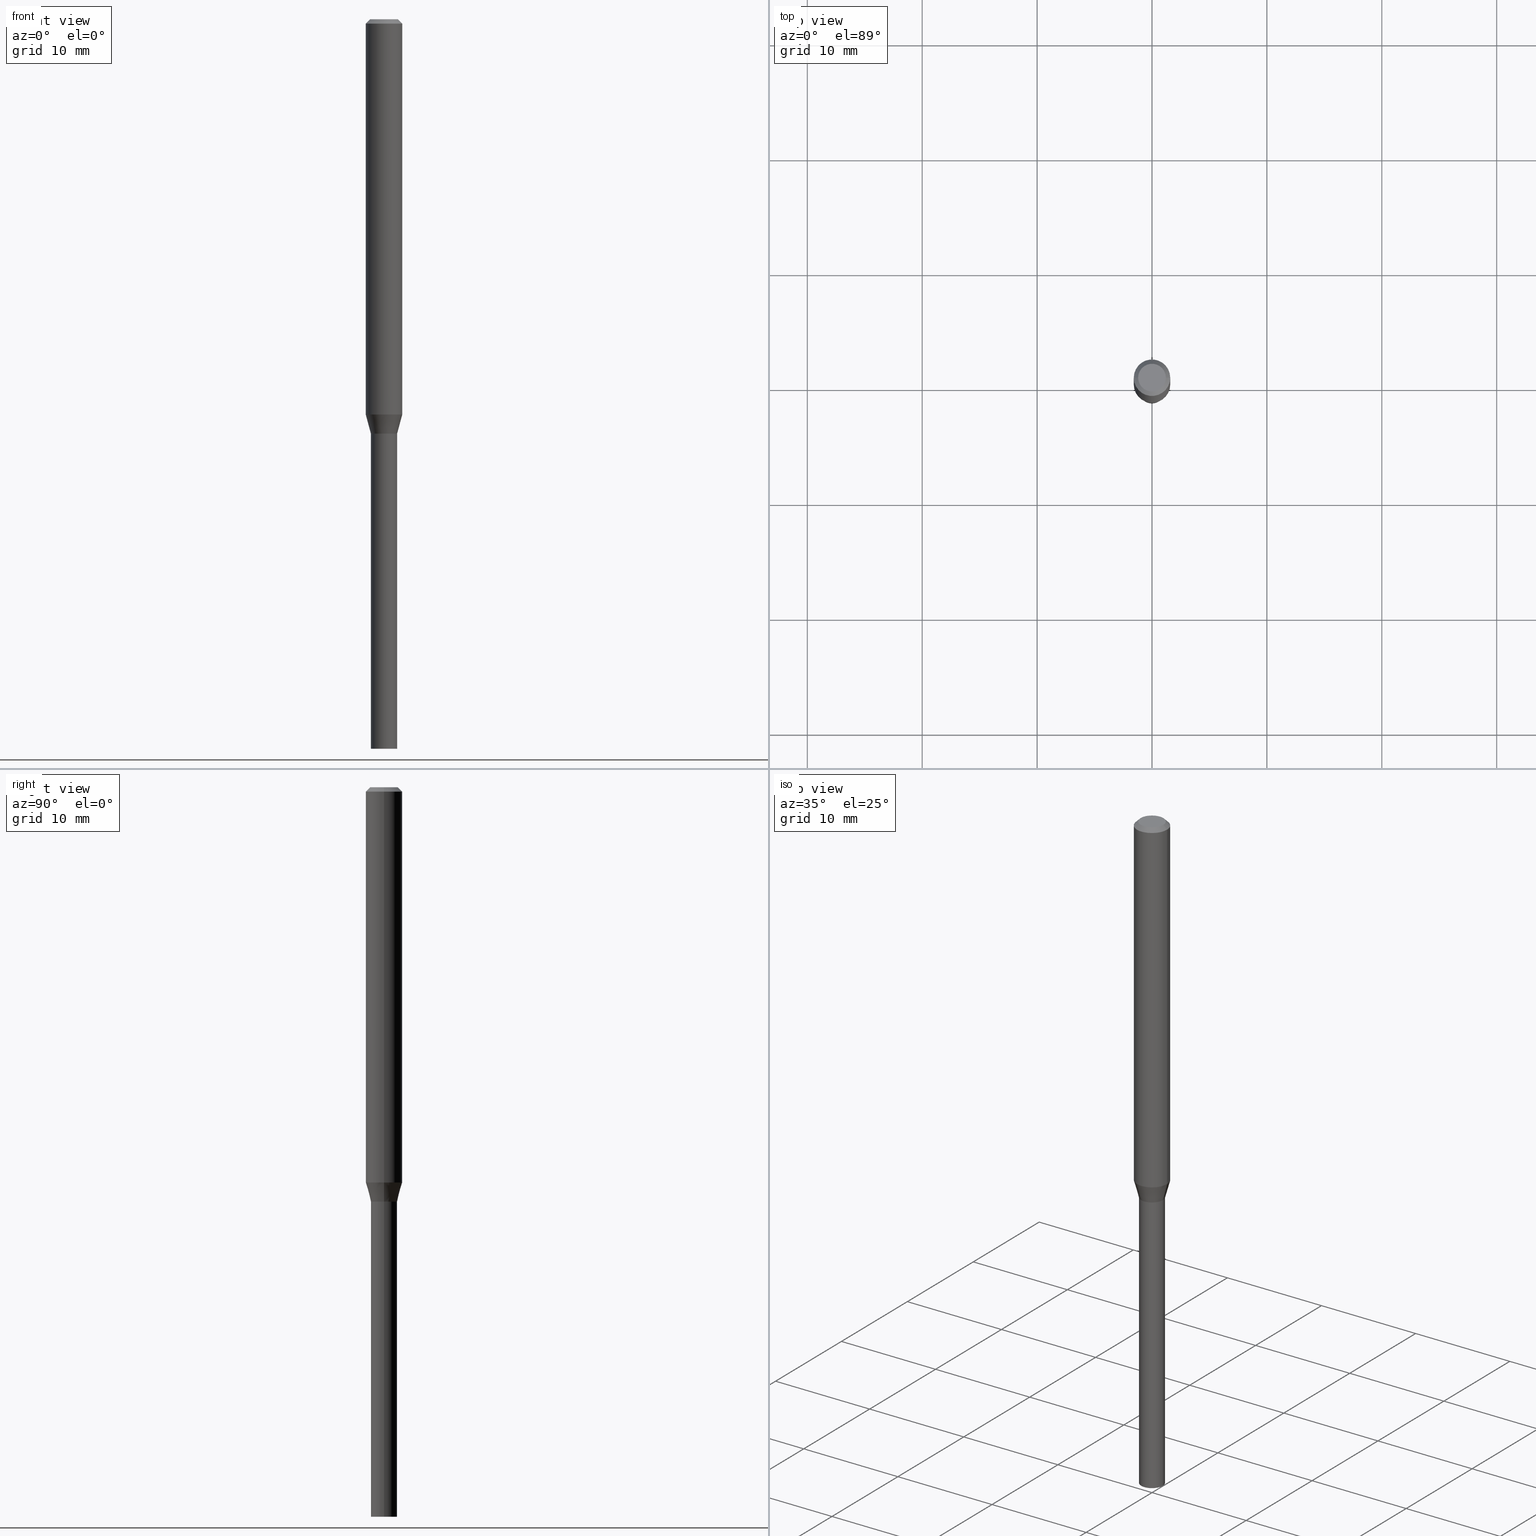
[diagram: canonical four-view strip — front | top / right | iso, engineering-drawing reading convention]
A machine part, canonical four-view strip (front | top / right | iso — engineering-drawing reading convention). The complete STEP part file that produces these views, byte-faithful:
ISO-10303-21;
HEADER;
FILE_DESCRIPTION (( 'STEP AP203' ),
    '1' );
FILE_NAME ('01303.STEP',
    '2024-03-20T01:15:59',
    ( '' ),
    ( '' ),
    'SwSTEP 2.0',
    'SolidWorks 2023',
    '' );
FILE_SCHEMA (( 'CONFIG_CONTROL_DESIGN' ));
ENDSEC;

DATA;
#1 = CARTESIAN_POINT ( 'NONE',  ( -0.06250000000000000000, -1.947032775455282295E-15, -0.01499999999999999944 ) ) ;
#2 = CALENDAR_DATE ( 2024, 19, 3 ) ;
#3 = ORIENTED_EDGE ( 'NONE', *, *, #205, .F. ) ;
#4 = AXIS2_PLACEMENT_3D ( 'NONE', #91, #127, #51 ) ;
#5 = PLANE ( 'NONE',  #213 ) ;
#6 = DIRECTION ( 'NONE',  ( -2.445468806185136597E-29, 3.491481338843145583E-15, 1.000000000000000000 ) ) ;
#7 = ADVANCED_FACE ( 'NONE', ( #388 ), #114, .T. ) ;
#8 = FACE_OUTER_BOUND ( 'NONE', #218, .T. ) ;
#9 = CONICAL_SURFACE ( 'NONE', #128, 0.06250000000000000000, 0.7853981633974512766 ) ;
#10 = LOCAL_TIME ( 21, 15, 59.00000000000000000, #441 ) ;
#11 = LINE ( 'NONE', #110, #232 ) ;
#12 = DIRECTION ( 'NONE',  ( 1.000000000000000000, -6.982962677686267499E-15, 4.876176775795936353E-29 ) ) ;
#13 = CARTESIAN_POINT ( 'NONE',  ( 3.471342970379802534E-29, -4.956157760487845847E-15, -1.419500000000000206 ) ) ;
#14 = EDGE_CURVE ( 'NONE', #313, #293, #240, .T. ) ;
#15 = DIMENSIONAL_EXPONENTS ( 1.000000000000000000, 0.000000000000000000, 0.000000000000000000, 0.000000000000000000, 0.000000000000000000, 0.000000000000000000, 0.000000000000000000 ) ;
#16 = DIRECTION ( 'NONE',  ( 1.000000000000000000, -6.982962677686267499E-15, 4.884662768193073002E-29 ) ) ;
#17 = MANIFOLD_SOLID_BREP ( 'Body-Move/Copy2[2]', #79 ) ;
#18 = CARTESIAN_POINT ( 'NONE',  ( 3.668203209277705088E-31, -5.237222008264718399E-17, -0.01499999999999999944 ) ) ;
#19 = VERTEX_POINT ( 'NONE', #102 ) ;
#20 = PRODUCT_DEFINITION ( 'UNKNOWN', '', #106, #107 ) ;
#21 = DIRECTION ( 'NONE',  ( 0.2588190451025217387, 1.565188264969619207E-15, 0.9659258262890679791 ) ) ;
#22 = ORIENTED_EDGE ( 'NONE', *, *, #457, .F. ) ;
#23 = CIRCLE ( 'NONE', #454, 0.06250000000000000000 ) ;
#24 = AXIS2_PLACEMENT_3D ( 'NONE', #437, #152, #262 ) ;
#25 = DIRECTION ( 'NONE',  ( 1.000000000000000000, -6.982962677686266711E-15, 4.876176775795935793E-29 ) ) ;
#26 = EDGE_LOOP ( 'NONE', ( #319, #181 ) ) ;
#27 = APPLICATION_PROTOCOL_DEFINITION ( 'international standard', 'config_control_design', 1994, #84 ) ;
#28 = VERTEX_POINT ( 'NONE', #1 ) ;
#29 = APPLICATION_PROTOCOL_DEFINITION ( 'international standard', 'config_control_design', 1994, #248 ) ;
#30 = DIRECTION ( 'NONE',  ( -2.445468806185136597E-29, 3.491481338843145583E-15, 1.000000000000000000 ) ) ;
#31 = EDGE_CURVE ( 'NONE', #285, #304, #184, .T. ) ;
#32 = ORIENTED_EDGE ( 'NONE', *, *, #330, .T. ) ;
#33 = ORIENTED_EDGE ( 'NONE', *, *, #244, .T. ) ;
#34 = EDGE_CURVE ( 'NONE', #144, #288, #359, .T. ) ;
#35 = COORDINATED_UNIVERSAL_TIME_OFFSET ( 5, 0, .BEHIND. ) ;
#36 = EDGE_LOOP ( 'NONE', ( #432, #448, #242, #451 ) ) ;
#37 = DIRECTION ( 'NONE',  ( 1.000000000000000000, -6.982962677686276966E-15, 0.000000000000000000 ) ) ;
#38 = APPROVAL_ROLE ( '' ) ;
#39 = LINE ( 'NONE', #224, #384 ) ;
#40 = EDGE_CURVE ( 'NONE', #144, #179, #23, .T. ) ;
#41 = FACE_OUTER_BOUND ( 'NONE', #424, .T. ) ;
#42 = DATE_AND_TIME ( #366, #10 ) ;
#43 = DIRECTION ( 'NONE',  ( -2.445468806185136597E-29, 3.491481338843145583E-15, 1.000000000000000000 ) ) ;
#44 = LOCAL_TIME ( 21, 15, 59.00000000000000000, #243 ) ;
#45 = PERSON_AND_ORGANIZATION_ROLE ( 'classification_officer' ) ;
#46 = DIRECTION ( 'NONE',  ( -2.445468806185136597E-29, 3.491481338843145583E-15, 1.000000000000000000 ) ) ;
#47 = FACE_OUTER_BOUND ( 'NONE', #428, .T. ) ;
#48 = DIRECTION ( 'NONE',  ( -1.000000000000000000, 6.982962677686266711E-15, 0.000000000000000000 ) ) ;
#49 = VERTEX_POINT ( 'NONE', #398 ) ;
#50 = CLOSED_SHELL ( 'NONE', ( #120, #172, #334, #413 ) ) ;
#51 = DIRECTION ( 'NONE',  ( -1.000000000000000000, 6.982962677686265922E-15, -4.876176775795935793E-29 ) ) ;
#52 = EDGE_CURVE ( 'NONE', #49, #385, #96, .T. ) ;
#53 = CARTESIAN_POINT ( 'NONE',  ( -0.04499999999999992895, 3.197442310920445788E-16, -2.213520790614704057E-30 ) ) ;
#54 = CARTESIAN_POINT ( 'NONE',  ( -0.04499999999999966527, -4.461970905371602436E-15, -1.420000000000000151 ) ) ;
#55 = AXIS2_PLACEMENT_3D ( 'NONE', #252, #396, #68 ) ;
#56 = CIRCLE ( 'NONE', #104, 0.04499999999999999833 ) ;
#57 =( CONVERSION_BASED_UNIT ( 'INCH', #64 ) LENGTH_UNIT ( ) NAMED_UNIT ( #15 ) );
#58 = ORIENTED_EDGE ( 'NONE', *, *, #391, .T. ) ;
#59 = CALENDAR_DATE ( 2024, 19, 3 ) ;
#60 = DIRECTION ( 'NONE',  ( -2.445468806185136597E-29, 3.491481338843145583E-15, 1.000000000000000000 ) ) ;
#61 = UNCERTAINTY_MEASURE_WITH_UNIT (LENGTH_MEASURE( 1.000000000000000082E-05 ), #57, 'distance_accuracy_value', 'NONE');
#62 = CARTESIAN_POINT ( 'NONE',  ( 3.472565704782894214E-29, -4.957903501157267351E-15, -1.420000000000000151 ) ) ;
#63 = ORIENTED_EDGE ( 'NONE', *, *, #347, .T. ) ;
#64 = LENGTH_MEASURE_WITH_UNIT ( LENGTH_MEASURE( 0.02539999999999999897 ), #145 );
#65 = CIRCLE ( 'NONE', #394, 0.06250000000000000000 ) ;
#66 = DIRECTION ( 'NONE',  ( 1.000000000000000000, -6.982962677686276966E-15, 0.000000000000000000 ) ) ;
#67 = EDGE_CURVE ( 'NONE', #179, #28, #209, .T. ) ;
#68 = DIRECTION ( 'NONE',  ( 1.000000000000000000, -6.982962677686257244E-15, 0.000000000000000000 ) ) ;
#69 = ORIENTED_EDGE ( 'NONE', *, *, #112, .T. ) ;
#70 = DIRECTION ( 'NONE',  ( 1.000000000000000000, -6.982962677686262766E-15, 0.000000000000000000 ) ) ;
#71 = VECTOR ( 'NONE', #190, 39.37007874015748143 ) ;
#72 = PERSON_AND_ORGANIZATION ( #360, #311 ) ;
#73 = DIRECTION ( 'NONE',  ( 1.000000000000000000, -6.982962677686266711E-15, 4.876176775795935793E-29 ) ) ;
#74 = CC_DESIGN_PERSON_AND_ORGANIZATION_ASSIGNMENT ( #346, #175, ( #132 ) ) ;
#75 = PERSON_AND_ORGANIZATION_ROLE ( 'creator' ) ;
#76 = CARTESIAN_POINT ( 'NONE',  ( 3.472565704782893654E-29, -4.957903501157266562E-15, -1.419999999999999929 ) ) ;
#77 = SHAPE_DEFINITION_REPRESENTATION ( #380, #111 ) ;
#78 = DIRECTION ( 'NONE',  ( -2.445468806185136877E-29, 3.491481338843145188E-15, 1.000000000000000000 ) ) ;
#79 = CLOSED_SHELL ( 'NONE', ( #191, #7, #284, #165, #198, #253, #125, #290, #301, #365, #422, #307 ) ) ;
#80 = CONICAL_SURFACE ( 'NONE', #303, 0.04499999999999966527, 0.2617993877991504625 ) ;
#81 = CARTESIAN_POINT ( 'NONE',  ( -0.04500000000000019262, -4.636413529395799690E-15, -1.419500000000000206 ) ) ;
#82 = LINE ( 'NONE', #343, #250 ) ;
#83 = ORIENTED_EDGE ( 'NONE', *, *, #244, .F. ) ;
#84 = APPLICATION_CONTEXT ( 'configuration controlled 3d designs of mechanical parts and assemblies' ) ;
#85 = CARTESIAN_POINT ( 'NONE',  ( 3.668203209277705088E-31, -5.237222008264718399E-17, -0.01499999999999999944 ) ) ;
#86 = EDGE_CURVE ( 'NONE', #293, #179, #39, .T. ) ;
#87 = ORIENTED_EDGE ( 'NONE', *, *, #223, .T. ) ;
#88 = AXIS2_PLACEMENT_3D ( 'NONE', #411, #337, #16 ) ;
#89 = DIRECTION ( 'NONE',  ( 2.445468806185136597E-29, -3.491481338843145583E-15, -1.000000000000000000 ) ) ;
#90 = VERTEX_POINT ( 'NONE', #194 ) ;
#91 = CARTESIAN_POINT ( 'NONE',  ( 3.316907271900976096E-16, 0.04749999999999999362, -2.081032274698379328E-16 ) ) ;
#92 = ORIENTED_EDGE ( 'NONE', *, *, #187, .F. ) ;
#93 = DIRECTION ( 'NONE',  ( -2.445468806185136597E-29, 3.491481338843145583E-15, 1.000000000000000000 ) ) ;
#94 = CIRCLE ( 'NONE', #362, 0.04499999999999999833 ) ;
#95 = EDGE_CURVE ( 'NONE', #313, #415, #408, .T. ) ;
#96 = CIRCLE ( 'NONE', #122, 0.04499999999999999833 ) ;
#97 = CIRCLE ( 'NONE', #241, 0.06250000000000000000 ) ;
#98 = ORIENTED_EDGE ( 'NONE', *, *, #95, .F. ) ;
#99 = APPROVAL_STATUS ( 'not_yet_approved' ) ;
#100 = ORIENTED_EDGE ( 'NONE', *, *, #355, .F. ) ;
#101 = PERSON_AND_ORGANIZATION ( #360, #311 ) ;
#102 = CARTESIAN_POINT ( 'NONE',  ( 0.04499999999999999833, -5.272136821653149037E-15, -1.420000000000000151 ) ) ;
#103 = EDGE_CURVE ( 'NONE', #385, #49, #94, .T. ) ;
#104 = AXIS2_PLACEMENT_3D ( 'NONE', #62, #143, #392 ) ;
#105 = DIRECTION ( 'NONE',  ( -2.445468806185136597E-29, 3.491481338843145583E-15, 1.000000000000000000 ) ) ;
#106 = PRODUCT_DEFINITION_FORMATION_WITH_SPECIFIED_SOURCE ( 'ANY', '', #132, .NOT_KNOWN. ) ;
#107 = DESIGN_CONTEXT ( 'detailed design', #84, 'design' ) ;
#108 = DATE_AND_TIME ( #401, #371 ) ;
#109 = EDGE_LOOP ( 'NONE', ( #231, #430, #146, #160 ) ) ;
#110 = CARTESIAN_POINT ( 'NONE',  ( 0.04449999999999999789, -5.268645340314304452E-15, -1.419999999999999929 ) ) ;
#111 = ADVANCED_BREP_SHAPE_REPRESENTATION ( '01303', ( #328, #17, #400 ), #162 ) ;
#112 = EDGE_CURVE ( 'NONE', #169, #375, #219, .T. ) ;
#113 = APPROVAL_STATUS ( 'not_yet_approved' ) ;
#114 = CONICAL_SURFACE ( 'NONE', #212, 0.04449999999999999789, 0.7853981633980202659 ) ;
#115 = DIRECTION ( 'NONE',  ( -0.2588190451025217387, 5.211531920934551042E-15, 0.9659258262890679791 ) ) ;
#116 = CC_DESIGN_APPROVAL ( #464, ( #20 ) ) ;
#117 = COORDINATED_UNIVERSAL_TIME_OFFSET ( 5, 0, .BEHIND. ) ;
#118 = CARTESIAN_POINT ( 'NONE',  ( -0.06250000000000000000, 3.840629472727444916E-16, -0.01499999999999999944 ) ) ;
#119 = FACE_OUTER_BOUND ( 'NONE', #348, .T. ) ;
#120 = ADVANCED_FACE ( 'NONE', ( #222 ), #188, .T. ) ;
#121 = CARTESIAN_POINT ( 'NONE',  ( 3.472565704782894214E-29, -4.957903501157267351E-15, -1.420000000000000151 ) ) ;
#122 = AXIS2_PLACEMENT_3D ( 'NONE', #315, #461, #137 ) ;
#123 = CIRCLE ( 'NONE', #417, 0.04499999999999966527 ) ;
#124 = CYLINDRICAL_SURFACE ( 'NONE', #310, 0.04499999999999999833 ) ;
#125 = ADVANCED_FACE ( 'NONE', ( #8 ), #149, .T. ) ;
#126 = FACE_OUTER_BOUND ( 'NONE', #197, .T. ) ;
#127 = DIRECTION ( 'NONE',  ( 2.438088387897960049E-29, -3.491481338843145188E-15, -1.000000000000000000 ) ) ;
#128 = AXIS2_PLACEMENT_3D ( 'NONE', #18, #89, #48 ) ;
#129 = CC_DESIGN_APPROVAL ( #156, ( #106 ) ) ;
#130 = CARTESIAN_POINT ( 'NONE',  ( 0.04449999999999999789, -5.268645340314304452E-15, -1.419999999999999929 ) ) ;
#131 = ORIENTED_EDGE ( 'NONE', *, *, #274, .F. ) ;
#132 = PRODUCT ( '01303', '01303', '', ( #349 ) ) ;
#133 = DIRECTION ( 'NONE',  ( -2.445468806185136597E-29, 3.491481338843145583E-15, 1.000000000000000000 ) ) ;
#134 = ORIENTED_EDGE ( 'NONE', *, *, #320, .F. ) ;
#135 = EDGE_CURVE ( 'NONE', #288, #28, #65, .T. ) ;
#136 = PERSON_AND_ORGANIZATION_ROLE ( 'creator' ) ;
#137 = DIRECTION ( 'NONE',  ( 1.000000000000000000, -6.982962677686246989E-15, 0.000000000000000000 ) ) ;
#138 = VECTOR ( 'NONE', #168, 39.37007874015748143 ) ;
#139 = CC_DESIGN_APPROVAL ( #202, ( #338 ) ) ;
#140 = DIRECTION ( 'NONE',  ( 1.000000000000000000, 0.000000000000000000, 0.000000000000000000 ) ) ;
#141 = CARTESIAN_POINT ( 'NONE',  ( 3.472565704782893654E-29, -4.957903501157266562E-15, -1.419999999999999929 ) ) ;
#142 = EDGE_CURVE ( 'NONE', #304, #415, #11, .T. ) ;
#143 = DIRECTION ( 'NONE',  ( -2.445468806185136597E-29, 3.491481338843145583E-15, 1.000000000000000000 ) ) ;
#144 = VERTEX_POINT ( 'NONE', #296 ) ;
#145 =( LENGTH_UNIT ( ) NAMED_UNIT ( * ) SI_UNIT ( $, .METRE. ) );
#146 = ORIENTED_EDGE ( 'NONE', *, *, #142, .T. ) ;
#147 = DATE_AND_TIME ( #2, #259 ) ;
#148 = DIRECTION ( 'NONE',  ( 1.000000000000000000, -6.982962677686262766E-15, 0.000000000000000000 ) ) ;
#149 = CYLINDRICAL_SURFACE ( 'NONE', #24, 0.06250000000000000000 ) ;
#150 = EDGE_CURVE ( 'NONE', #375, #28, #403, .T. ) ;
#151 = DATE_AND_TIME ( #438, #170 ) ;
#152 = DIRECTION ( 'NONE',  ( -2.445468806185136597E-29, 3.491481338843145583E-15, 1.000000000000000000 ) ) ;
#153 = PERSON_AND_ORGANIZATION ( #360, #311 ) ;
#154 = CARTESIAN_POINT ( 'NONE',  ( 0.000000000000000000, 0.000000000000000000, 0.000000000000000000 ) ) ;
#155 = AXIS2_PLACEMENT_3D ( 'NONE', #374, #268, #373 ) ;
#156 = APPROVAL ( #434, 'UNSPECIFIED' ) ;
#157 = FACE_OUTER_BOUND ( 'NONE', #26, .T. ) ;
#158 = DIRECTION ( 'NONE',  ( -2.438088387897960049E-29, 3.491481338843145188E-15, 1.000000000000000000 ) ) ;
#159 = DIRECTION ( 'NONE',  ( 1.000000000000000000, -6.982962677686259611E-15, 0.000000000000000000 ) ) ;
#160 = ORIENTED_EDGE ( 'NONE', *, *, #442, .F. ) ;
#161 = CONICAL_SURFACE ( 'NONE', #332, 0.06250000000000000000, 0.7853981633974512766 ) ;
#162 =( GEOMETRIC_REPRESENTATION_CONTEXT ( 3 ) GLOBAL_UNCERTAINTY_ASSIGNED_CONTEXT ( ( #61 ) ) GLOBAL_UNIT_ASSIGNED_CONTEXT ( ( #57, #465, #246 ) ) REPRESENTATION_CONTEXT ( 'NONE', 'WORKASPACE' ) );
#163 = CARTESIAN_POINT ( 'NONE',  ( 0.04499999999999966527, -5.272136821653147459E-15, -1.420000000000000151 ) ) ;
#164 = ORIENTED_EDGE ( 'NONE', *, *, #34, .F. ) ;
#165 = ADVANCED_FACE ( 'NONE', ( #41 ), #443, .T. ) ;
#166 = DIRECTION ( 'NONE',  ( -2.445468806185136877E-29, 3.491481338843145188E-15, 1.000000000000000000 ) ) ;
#167 = EDGE_LOOP ( 'NONE', ( #58, #69 ) ) ;
#168 = DIRECTION ( 'NONE',  ( -2.445468806185136877E-29, 3.491481338843145188E-15, 1.000000000000000000 ) ) ;
#169 = VERTEX_POINT ( 'NONE', #294 ) ;
#170 = LOCAL_TIME ( 21, 15, 59.00000000000000000, #117 ) ;
#171 = DIRECTION ( 'NONE',  ( 1.000000000000000000, -6.982962677686276966E-15, 0.000000000000000000 ) ) ;
#172 = ADVANCED_FACE ( 'NONE', ( #157 ), #5, .F. ) ;
#173 = ORIENTED_EDGE ( 'NONE', *, *, #205, .T. ) ;
#174 = EDGE_LOOP ( 'NONE', ( #322, #344 ) ) ;
#175 = PERSON_AND_ORGANIZATION_ROLE ( 'design_owner' ) ;
#176 = CARTESIAN_POINT ( 'NONE',  ( -0.06250000000000000000, 4.440892098500626162E-16, -3.074334431409316114E-30 ) ) ;
#177 = CIRCLE ( 'NONE', #88, 0.04749999999999999362 ) ;
#178 = CARTESIAN_POINT ( 'NONE',  ( 0.000000000000000000, 0.000000000000000000, 0.000000000000000000 ) ) ;
#179 = VERTEX_POINT ( 'NONE', #405 ) ;
#180 = DIRECTION ( 'NONE',  ( -1.000000000000000000, 6.982962677686265922E-15, -4.876176775795935793E-29 ) ) ;
#181 = ORIENTED_EDGE ( 'NONE', *, *, #103, .F. ) ;
#182 = PLANE ( 'NONE',  #276 ) ;
#183 = CARTESIAN_POINT ( 'NONE',  ( 0.06250000000000000000, -4.364351673553916694E-16, 3.047610484872459871E-30 ) ) ;
#184 = CIRCLE ( 'NONE', #55, 0.04449999999999999789 ) ;
#185 = CIRCLE ( 'NONE', #325, 0.04500000000000019262 ) ;
#186 = CARTESIAN_POINT ( 'NONE',  ( 3.312849962705256373E-29, -4.729871750528042350E-15, -1.354689110867543844 ) ) ;
#187 = EDGE_CURVE ( 'NONE', #304, #285, #370, .T. ) ;
#188 = CYLINDRICAL_SURFACE ( 'NONE', #258, 0.04499999999999999833 ) ;
#189 = SECURITY_CLASSIFICATION_LEVEL ( 'unclassified' ) ;
#190 = DIRECTION ( 'NONE',  ( -0.7071067811865496822, 2.468850131082278754E-15, -0.7071067811865454633 ) ) ;
#191 = ADVANCED_FACE ( 'NONE', ( #119 ), #256, .F. ) ;
#192 = CARTESIAN_POINT ( 'NONE',  ( 6.113672015462842613E-29, -8.728703347107864943E-15, -2.500000000000000000 ) ) ;
#193 = AXIS2_PLACEMENT_3D ( 'NONE', #372, #46, #12 ) ;
#194 = CARTESIAN_POINT ( 'NONE',  ( -0.04499999999999999833, -6.523559193040520779E-15, -1.420000000000000151 ) ) ;
#195 = DIRECTION ( 'NONE',  ( 2.445468806185136597E-29, -3.491481338843145583E-15, -1.000000000000000000 ) ) ;
#196 = LINE ( 'NONE', #53, #138 ) ;
#197 = EDGE_LOOP ( 'NONE', ( #275, #32, #217, #247 ) ) ;
#198 = ADVANCED_FACE ( 'NONE', ( #300 ), #318, .T. ) ;
#199 = AXIS2_PLACEMENT_3D ( 'NONE', #154, #298, #73 ) ;
#200 = FACE_OUTER_BOUND ( 'NONE', #204, .T. ) ;
#201 = VERTEX_POINT ( 'NONE', #81 ) ;
#202 = APPROVAL ( #113, 'UNSPECIFIED' ) ;
#203 = DIRECTION ( 'NONE',  ( 1.000000000000000000, -6.982962677686267499E-15, 4.876176775795936353E-29 ) ) ;
#204 = EDGE_LOOP ( 'NONE', ( #350, #393, #390, #237 ) ) ;
#205 = EDGE_CURVE ( 'NONE', #179, #144, #409, .T. ) ;
#206 = CYLINDRICAL_SURFACE ( 'NONE', #345, 0.04499999999999992895 ) ;
#207 = AXIS2_PLACEMENT_3D ( 'NONE', #13, #133, #159 ) ;
#208 = DATE_AND_TIME ( #59, #44 ) ;
#209 = LINE ( 'NONE', #176, #249 ) ;
#210 = CARTESIAN_POINT ( 'NONE',  ( 3.471342970379802534E-29, -4.956157760487845847E-15, -1.419500000000000206 ) ) ;
#211 = ORIENTED_EDGE ( 'NONE', *, *, #34, .T. ) ;
#212 = AXIS2_PLACEMENT_3D ( 'NONE', #141, #105, #289 ) ;
#213 = AXIS2_PLACEMENT_3D ( 'NONE', #445, #158, #368 ) ;
#214 = APPROVAL_PERSON_ORGANIZATION ( #153, #156, #38 ) ;
#215 = ORIENTED_EDGE ( 'NONE', *, *, #436, .F. ) ;
#216 = DIRECTION ( 'NONE',  ( 1.000000000000000000, -6.982962677686257244E-15, 0.000000000000000000 ) ) ;
#217 = ORIENTED_EDGE ( 'NONE', *, *, #135, .T. ) ;
#218 = EDGE_LOOP ( 'NONE', ( #234, #173, #211, #22 ) ) ;
#219 = CIRCLE ( 'NONE', #283, 0.04749999999999999362 ) ;
#220 = LINE ( 'NONE', #364, #446 ) ;
#221 = DATE_TIME_ROLE ( 'classification_date' ) ;
#222 = FACE_OUTER_BOUND ( 'NONE', #245, .T. ) ;
#223 = EDGE_CURVE ( 'NONE', #385, #90, #220, .T. ) ;
#224 = CARTESIAN_POINT ( 'NONE',  ( -0.04499999999999966527, -4.638159270065224349E-15, -1.420000000000000151 ) ) ;
#225 = CARTESIAN_POINT ( 'NONE',  ( 0.04499999999999992895, -3.142333204958815385E-16, 2.194279549108167814E-30 ) ) ;
#226 = VECTOR ( 'NONE', #423, 39.37007874015748143 ) ;
#227 = CC_DESIGN_SECURITY_CLASSIFICATION ( #338, ( #106 ) ) ;
#228 = FACE_OUTER_BOUND ( 'NONE', #167, .T. ) ;
#229 = FACE_OUTER_BOUND ( 'NONE', #339, .T. ) ;
#230 = FACE_OUTER_BOUND ( 'NONE', #36, .T. ) ;
#231 = ORIENTED_EDGE ( 'NONE', *, *, #449, .F. ) ;
#232 = VECTOR ( 'NONE', #367, 39.37007874015748854 ) ;
#233 = DIRECTION ( 'NONE',  ( 1.000000000000000000, -6.982962677686269077E-15, 0.000000000000000000 ) ) ;
#234 = ORIENTED_EDGE ( 'NONE', *, *, #67, .F. ) ;
#235 = CC_DESIGN_DATE_AND_TIME_ASSIGNMENT ( #208, #255, ( #20 ) ) ;
#236 = CARTESIAN_POINT ( 'NONE',  ( 3.472565704782894214E-29, -4.957903501157267351E-15, -1.420000000000000151 ) ) ;
#237 = ORIENTED_EDGE ( 'NONE', *, *, #369, .T. ) ;
#238 = LINE ( 'NONE', #352, #386 ) ;
#239 = ORIENTED_EDGE ( 'NONE', *, *, #135, .F. ) ;
#240 = CIRCLE ( 'NONE', #265, 0.04499999999999966527 ) ;
#241 = AXIS2_PLACEMENT_3D ( 'NONE', #425, #316, #281 ) ;
#242 = ORIENTED_EDGE ( 'NONE', *, *, #150, .T. ) ;
#243 = COORDINATED_UNIVERSAL_TIME_OFFSET ( 5, 0, .BEHIND. ) ;
#244 = EDGE_CURVE ( 'NONE', #313, #144, #418, .T. ) ;
#245 = EDGE_LOOP ( 'NONE', ( #254, #87, #134, #131 ) ) ;
#246 =( NAMED_UNIT ( * ) SI_UNIT ( $, .STERADIAN. ) SOLID_ANGLE_UNIT ( ) );
#247 = ORIENTED_EDGE ( 'NONE', *, *, #150, .F. ) ;
#248 = APPLICATION_CONTEXT ( 'configuration controlled 3d designs of mechanical parts and assemblies' ) ;
#249 = VECTOR ( 'NONE', #444, 39.37007874015748143 ) ;
#250 = VECTOR ( 'NONE', #450, 39.37007874015748143 ) ;
#251 = FACE_OUTER_BOUND ( 'NONE', #174, .T. ) ;
#252 = CARTESIAN_POINT ( 'NONE',  ( 3.472565704782893654E-29, -4.957903501157266562E-15, -1.419999999999999929 ) ) ;
#253 = ADVANCED_FACE ( 'NONE', ( #47 ), #80, .T. ) ;
#254 = ORIENTED_EDGE ( 'NONE', *, *, #52, .T. ) ;
#255 = DATE_TIME_ROLE ( 'creation_date' ) ;
#256 = CYLINDRICAL_SURFACE ( 'NONE', #193, 0.04499999999999992895 ) ;
#257 = APPROVAL_ROLE ( '' ) ;
#258 = AXIS2_PLACEMENT_3D ( 'NONE', #410, #335, #326 ) ;
#259 = LOCAL_TIME ( 21, 15, 59.00000000000000000, #35 ) ;
#260 = DIRECTION ( 'NONE',  ( 1.000000000000000000, -6.982962677686266711E-15, 0.000000000000000000 ) ) ;
#261 = COORDINATED_UNIVERSAL_TIME_OFFSET ( 5, 0, .BEHIND. ) ;
#262 = DIRECTION ( 'NONE',  ( 1.000000000000000000, -6.982962677686266711E-15, 4.876176775795935793E-29 ) ) ;
#263 = APPROVAL_DATE_TIME ( #108, #156 ) ;
#264 = DIRECTION ( 'NONE',  ( 1.000000000000000000, -6.982962677686246989E-15, 0.000000000000000000 ) ) ;
#265 = AXIS2_PLACEMENT_3D ( 'NONE', #357, #30, #66 ) ;
#266 = DIRECTION ( 'NONE',  ( -2.445468806185136597E-29, 3.491481338843145583E-15, 1.000000000000000000 ) ) ;
#267 = AXIS2_PLACEMENT_3D ( 'NONE', #395, #93, #216 ) ;
#268 = DIRECTION ( 'NONE',  ( -2.438088387897960049E-29, 3.491481338843145188E-15, 1.000000000000000000 ) ) ;
#269 = ORIENTED_EDGE ( 'NONE', *, *, #449, .T. ) ;
#270 = CC_DESIGN_PERSON_AND_ORGANIZATION_ASSIGNMENT ( #72, #295, ( #106 ) ) ;
#271 = DIRECTION ( 'NONE',  ( -1.000000000000000000, 6.982962677686266711E-15, 0.000000000000000000 ) ) ;
#272 = ORIENTED_EDGE ( 'NONE', *, *, #86, .T. ) ;
#273 = DIRECTION ( 'NONE',  ( -2.445468806185136597E-29, 3.491481338843145583E-15, 1.000000000000000000 ) ) ;
#274 = EDGE_CURVE ( 'NONE', #49, #19, #82, .T. ) ;
#275 = ORIENTED_EDGE ( 'NONE', *, *, #112, .F. ) ;
#276 = AXIS2_PLACEMENT_3D ( 'NONE', #358, #429, #180 ) ;
#277 = CARTESIAN_POINT ( 'NONE',  ( 0.000000000000000000, 0.000000000000000000, 0.000000000000000000 ) ) ;
#278 = ORIENTED_EDGE ( 'NONE', *, *, #67, .T. ) ;
#279 = CARTESIAN_POINT ( 'NONE',  ( -0.04499999999999999833, -6.523559193040520779E-15, -2.500000000000000000 ) ) ;
#280 = ORIENTED_EDGE ( 'NONE', *, *, #369, .F. ) ;
#281 = DIRECTION ( 'NONE',  ( 1.000000000000000000, -6.982962677686266711E-15, 0.000000000000000000 ) ) ;
#282 = ORIENTED_EDGE ( 'NONE', *, *, #86, .F. ) ;
#283 = AXIS2_PLACEMENT_3D ( 'NONE', #361, #439, #333 ) ;
#284 = ADVANCED_FACE ( 'NONE', ( #126 ), #161, .T. ) ;
#285 = VERTEX_POINT ( 'NONE', #414 ) ;
#286 = CC_DESIGN_DATE_AND_TIME_ASSIGNMENT ( #151, #221, ( #338 ) ) ;
#287 = DIRECTION ( 'NONE',  ( 0.000000000000000000, 0.000000000000000000, 1.000000000000000000 ) ) ;
#288 = VERTEX_POINT ( 'NONE', #447 ) ;
#289 = DIRECTION ( 'NONE',  ( 1.000000000000000000, -6.982962677686257244E-15, 0.000000000000000000 ) ) ;
#290 = ADVANCED_FACE ( 'NONE', ( #230 ), #9, .T. ) ;
#291 = CIRCLE ( 'NONE', #455, 0.04499999999999999833 ) ;
#292 = APPROVAL_DATE_TIME ( #147, #464 ) ;
#293 = VERTEX_POINT ( 'NONE', #54 ) ;
#294 = CARTESIAN_POINT ( 'NONE',  ( 0.04749999999999999362, -4.035134999187580102E-16, -8.451572774957450897E-17 ) ) ;
#295 = PERSON_AND_ORGANIZATION_ROLE ( 'design_supplier' ) ;
#296 = CARTESIAN_POINT ( 'NONE',  ( 0.06250000000000000000, -5.166306917883434019E-15, -1.354689110867543844 ) ) ;
#297 = AXIS2_PLACEMENT_3D ( 'NONE', #121, #266, #37 ) ;
#298 = DIRECTION ( 'NONE',  ( -2.445468806185136597E-29, 3.491481338843145583E-15, 1.000000000000000000 ) ) ;
#299 = DIRECTION ( 'NONE',  ( 1.000000000000000000, -6.982962677686257244E-15, 0.000000000000000000 ) ) ;
#300 = FACE_OUTER_BOUND ( 'NONE', #419, .T. ) ;
#301 = ADVANCED_FACE ( 'NONE', ( #228 ), #377, .F. ) ;
#302 = CARTESIAN_POINT ( 'NONE',  ( -0.04749999999999999362, 3.578768372314209027E-16, -8.451572774957950098E-17 ) ) ;
#303 = AXIS2_PLACEMENT_3D ( 'NONE', #341, #420, #305 ) ;
#304 = VERTEX_POINT ( 'NONE', #130 ) ;
#305 = DIRECTION ( 'NONE',  ( 1.000000000000000000, -6.982962677686276966E-15, 0.000000000000000000 ) ) ;
#306 = EDGE_LOOP ( 'NONE', ( #92, #453 ) ) ;
#307 = ADVANCED_FACE ( 'NONE', ( #200 ), #206, .F. ) ;
#308 = CARTESIAN_POINT ( 'NONE',  ( 0.04499999999999966527, -5.272136821653147459E-15, -1.420000000000000151 ) ) ;
#309 = CARTESIAN_POINT ( 'NONE',  ( 3.472565704782894214E-29, -4.957903501157267351E-15, -1.420000000000000151 ) ) ;
#310 = AXIS2_PLACEMENT_3D ( 'NONE', #277, #382, #25 ) ;
#311 = ORGANIZATION ( 'UNSPECIFIED', 'UNSPECIFIED', '' ) ;
#312 = FACE_OUTER_BOUND ( 'NONE', #306, .T. ) ;
#313 = VERTEX_POINT ( 'NONE', #308 ) ;
#314 = APPROVAL_ROLE ( '' ) ;
#315 = CARTESIAN_POINT ( 'NONE',  ( 6.113672015462842613E-29, -8.728703347107864943E-15, -2.500000000000000000 ) ) ;
#316 = DIRECTION ( 'NONE',  ( -2.445468806185136597E-29, 3.491481338843145583E-15, 1.000000000000000000 ) ) ;
#317 = ORIENTED_EDGE ( 'NONE', *, *, #355, .T. ) ;
#318 = CONICAL_SURFACE ( 'NONE', #297, 0.04499999999999966527, 0.2617993877991504625 ) ;
#319 = ORIENTED_EDGE ( 'NONE', *, *, #52, .F. ) ;
#320 = EDGE_CURVE ( 'NONE', #19, #90, #291, .T. ) ;
#321 = DIRECTION ( 'NONE',  ( -2.445468806185136597E-29, 3.491481338843145583E-15, 1.000000000000000000 ) ) ;
#322 = ORIENTED_EDGE ( 'NONE', *, *, #320, .T. ) ;
#323 = FACE_OUTER_BOUND ( 'NONE', #109, .T. ) ;
#324 = CARTESIAN_POINT ( 'NONE',  ( 3.312849962705256373E-29, -4.729871750528042350E-15, -1.354689110867543844 ) ) ;
#325 = AXIS2_PLACEMENT_3D ( 'NONE', #210, #321, #431 ) ;
#326 = DIRECTION ( 'NONE',  ( 1.000000000000000000, -6.982962677686266711E-15, 4.876176775795935793E-29 ) ) ;
#327 = APPROVAL_DATE_TIME ( #42, #202 ) ;
#328 = MANIFOLD_SOLID_BREP ( 'Body-Move/Copy2[1]', #50 ) ;
#329 = CARTESIAN_POINT ( 'NONE',  ( 3.668203209277705088E-31, -5.237222008264718399E-17, -0.01499999999999999944 ) ) ;
#330 = EDGE_CURVE ( 'NONE', #169, #288, #336, .T. ) ;
#331 = DIRECTION ( 'NONE',  ( -2.445468806185136597E-29, 3.491481338843145583E-15, 1.000000000000000000 ) ) ;
#332 = AXIS2_PLACEMENT_3D ( 'NONE', #85, #195, #271 ) ;
#333 = DIRECTION ( 'NONE',  ( 1.000000000000000000, -6.982962677686267499E-15, 4.884662768193073002E-29 ) ) ;
#334 = ADVANCED_FACE ( 'NONE', ( #229 ), #124, .T. ) ;
#335 = DIRECTION ( 'NONE',  ( -2.445468806185136597E-29, 3.491481338843145583E-15, 1.000000000000000000 ) ) ;
#336 = LINE ( 'NONE', #379, #226 ) ;
#337 = DIRECTION ( 'NONE',  ( -2.445468806185136597E-29, 3.491481338843145583E-15, 1.000000000000000000 ) ) ;
#338 = SECURITY_CLASSIFICATION ( '', '', #189 ) ;
#339 = EDGE_LOOP ( 'NONE', ( #466, #412, #342, #215 ) ) ;
#340 = DIRECTION ( 'NONE',  ( -2.445468806185136597E-29, 3.491481338843145583E-15, 1.000000000000000000 ) ) ;
#341 = CARTESIAN_POINT ( 'NONE',  ( 3.472565704782894214E-29, -4.957903501157267351E-15, -1.420000000000000151 ) ) ;
#342 = ORIENTED_EDGE ( 'NONE', *, *, #274, .T. ) ;
#343 = CARTESIAN_POINT ( 'NONE',  ( 0.04499999999999999833, -3.142333204958819823E-16, 2.194279549108170967E-30 ) ) ;
#344 = ORIENTED_EDGE ( 'NONE', *, *, #436, .T. ) ;
#345 = AXIS2_PLACEMENT_3D ( 'NONE', #452, #340, #203 ) ;
#346 = PERSON_AND_ORGANIZATION ( #360, #311 ) ;
#347 = EDGE_CURVE ( 'NONE', #293, #201, #196, .T. ) ;
#348 = EDGE_LOOP ( 'NONE', ( #100, #63, #353, #98 ) ) ;
#349 = MECHANICAL_CONTEXT ( 'NONE', #248, 'mechanical' ) ;
#350 = ORIENTED_EDGE ( 'NONE', *, *, #347, .F. ) ;
#351 = PRODUCT_RELATED_PRODUCT_CATEGORY ( 'detail', '', ( #132 ) ) ;
#352 = CARTESIAN_POINT ( 'NONE',  ( -0.04449999999999999789, -4.641711983744021304E-15, -1.419999999999999929 ) ) ;
#353 = ORIENTED_EDGE ( 'NONE', *, *, #442, .T. ) ;
#354 = CONICAL_SURFACE ( 'NONE', #267, 0.04449999999999999789, 0.7853981633980202659 ) ;
#355 = EDGE_CURVE ( 'NONE', #293, #313, #123, .T. ) ;
#356 = APPROVAL_PERSON_ORGANIZATION ( #101, #464, #314 ) ;
#357 = CARTESIAN_POINT ( 'NONE',  ( 3.472565704782894214E-29, -4.957903501157267351E-15, -1.420000000000000151 ) ) ;
#358 = CARTESIAN_POINT ( 'NONE',  ( 3.142333204959166428E-16, 0.04499999999999503703, -1.420000000000000373 ) ) ;
#359 = LINE ( 'NONE', #183, #416 ) ;
#360 = PERSON ( 'UNSPECIFIED', 'UNSPECIFIED', 'UNSPECIFIED', ('UNSPECIFIED'), ('UNSPECIFIED'), ('UNSPECIFIED') ) ;
#361 = CARTESIAN_POINT ( 'NONE',  ( 2.066805758436263276E-45, -2.950850862763961857E-31, -8.451572774957708509E-17 ) ) ;
#362 = AXIS2_PLACEMENT_3D ( 'NONE', #192, #331, #264 ) ;
#363 = VECTOR ( 'NONE', #78, 39.37007874015748143 ) ;
#364 = CARTESIAN_POINT ( 'NONE',  ( -0.04499999999999999833, 3.197442310920450718E-16, -2.213520790614707560E-30 ) ) ;
#365 = ADVANCED_FACE ( 'NONE', ( #312 ), #459, .F. ) ;
#366 = CALENDAR_DATE ( 2024, 19, 3 ) ;
#367 = DIRECTION ( 'NONE',  ( 0.7071067811869518049, -2.468850131086492060E-15, 0.7071067811861430075 ) ) ;
#368 = DIRECTION ( 'NONE',  ( 1.000000000000000000, -6.982962677686265922E-15, 4.876176775795935793E-29 ) ) ;
#369 = EDGE_CURVE ( 'NONE', #415, #201, #427, .T. ) ;
#370 = CIRCLE ( 'NONE', #440, 0.04449999999999999789 ) ;
#371 = LOCAL_TIME ( 21, 15, 59.00000000000000000, #261 ) ;
#372 = CARTESIAN_POINT ( 'NONE',  ( 0.000000000000000000, 0.000000000000000000, 0.000000000000000000 ) ) ;
#373 = DIRECTION ( 'NONE',  ( 1.000000000000000000, -6.982962677686265922E-15, 4.876176775795935793E-29 ) ) ;
#374 = CARTESIAN_POINT ( 'NONE',  ( 3.472565704782894214E-29, -4.957903501157267351E-15, -1.420000000000000151 ) ) ;
#375 = VERTEX_POINT ( 'NONE', #302 ) ;
#376 = AXIS2_PLACEMENT_3D ( 'NONE', #186, #399, #70 ) ;
#377 = PLANE ( 'NONE',  #4 ) ;
#378 = ORIENTED_EDGE ( 'NONE', *, *, #14, .T. ) ;
#379 = CARTESIAN_POINT ( 'NONE',  ( 0.06250000000000000000, -4.811533449433679005E-16, -0.01499999999999999944 ) ) ;
#380 = PRODUCT_DEFINITION_SHAPE ( 'NONE', 'NONE',  #20 ) ;
#381 = ORIENTED_EDGE ( 'NONE', *, *, #40, .F. ) ;
#382 = DIRECTION ( 'NONE',  ( -2.445468806185136597E-29, 3.491481338843145583E-15, 1.000000000000000000 ) ) ;
#383 = DIRECTION ( 'NONE',  ( -0.7071067811869518049, 7.493145998871813553E-15, 0.7071067811861430075 ) ) ;
#384 = VECTOR ( 'NONE', #115, 39.37007874015748854 ) ;
#385 = VERTEX_POINT ( 'NONE', #279 ) ;
#386 = VECTOR ( 'NONE', #383, 39.37007874015748854 ) ;
#387 = CC_DESIGN_PERSON_AND_ORGANIZATION_ASSIGNMENT ( #404, #75, ( #106 ) ) ;
#388 = FACE_OUTER_BOUND ( 'NONE', #463, .T. ) ;
#389 = CARTESIAN_POINT ( 'NONE',  ( 0.04500000000000019262, -5.270391080983729111E-15, -1.419500000000000206 ) ) ;
#390 = ORIENTED_EDGE ( 'NONE', *, *, #95, .T. ) ;
#391 = EDGE_CURVE ( 'NONE', #375, #169, #177, .T. ) ;
#392 = DIRECTION ( 'NONE',  ( 1.000000000000000000, -6.982962677686269077E-15, 0.000000000000000000 ) ) ;
#393 = ORIENTED_EDGE ( 'NONE', *, *, #14, .F. ) ;
#394 = AXIS2_PLACEMENT_3D ( 'NONE', #329, #6, #260 ) ;
#395 = CARTESIAN_POINT ( 'NONE',  ( 3.472565704782893654E-29, -4.957903501157266562E-15, -1.419999999999999929 ) ) ;
#396 = DIRECTION ( 'NONE',  ( -2.445468806185136597E-29, 3.491481338843145583E-15, 1.000000000000000000 ) ) ;
#397 = PERSON_AND_ORGANIZATION ( #360, #311 ) ;
#398 = CARTESIAN_POINT ( 'NONE',  ( 0.04499999999999999833, -9.042936667603745051E-15, -2.500000000000000000 ) ) ;
#399 = DIRECTION ( 'NONE',  ( -2.445468806185136597E-29, 3.491481338843145583E-15, 1.000000000000000000 ) ) ;
#400 = AXIS2_PLACEMENT_3D ( 'NONE', #178, #287, #140 ) ;
#401 = CALENDAR_DATE ( 2024, 19, 3 ) ;
#402 = CC_DESIGN_PERSON_AND_ORGANIZATION_ASSIGNMENT ( #407, #45, ( #338 ) ) ;
#403 = LINE ( 'NONE', #118, #71 ) ;
#404 = PERSON_AND_ORGANIZATION ( #360, #311 ) ;
#405 = CARTESIAN_POINT ( 'NONE',  ( -0.06250000000000000000, -4.285782540677979733E-15, -1.354689110867543844 ) ) ;
#406 = CC_DESIGN_PERSON_AND_ORGANIZATION_ASSIGNMENT ( #460, #136, ( #20 ) ) ;
#407 = PERSON_AND_ORGANIZATION ( #360, #311 ) ;
#408 = LINE ( 'NONE', #225, #363 ) ;
#409 = CIRCLE ( 'NONE', #376, 0.06250000000000000000 ) ;
#410 = CARTESIAN_POINT ( 'NONE',  ( 0.000000000000000000, 0.000000000000000000, 0.000000000000000000 ) ) ;
#411 = CARTESIAN_POINT ( 'NONE',  ( 2.066805758436263276E-45, -2.950850862763961857E-31, -8.451572774957708509E-17 ) ) ;
#412 = ORIENTED_EDGE ( 'NONE', *, *, #103, .T. ) ;
#413 = ADVANCED_FACE ( 'NONE', ( #251 ), #182, .F. ) ;
#414 = CARTESIAN_POINT ( 'NONE',  ( -0.04449999999999999789, -4.639062756569910103E-15, -1.419999999999999929 ) ) ;
#415 = VERTEX_POINT ( 'NONE', #389 ) ;
#416 = VECTOR ( 'NONE', #426, 39.37007874015748143 ) ;
#417 = AXIS2_PLACEMENT_3D ( 'NONE', #309, #456, #171 ) ;
#418 = LINE ( 'NONE', #163, #462 ) ;
#419 = EDGE_LOOP ( 'NONE', ( #378, #272, #381, #83 ) ) ;
#420 = DIRECTION ( 'NONE',  ( -2.445468806185136597E-29, 3.491481338843145583E-15, 1.000000000000000000 ) ) ;
#421 = ORIENTED_EDGE ( 'NONE', *, *, #187, .T. ) ;
#422 = ADVANCED_FACE ( 'NONE', ( #323 ), #354, .T. ) ;
#423 = DIRECTION ( 'NONE',  ( 0.7071067811865496822, -7.319954787623263934E-15, -0.7071067811865454633 ) ) ;
#424 = EDGE_LOOP ( 'NONE', ( #458, #278, #239, #164 ) ) ;
#425 = CARTESIAN_POINT ( 'NONE',  ( 3.668203209277705088E-31, -5.237222008264718399E-17, -0.01499999999999999944 ) ) ;
#426 = DIRECTION ( 'NONE',  ( -2.445468806185136877E-29, 3.491481338843145188E-15, 1.000000000000000000 ) ) ;
#427 = CIRCLE ( 'NONE', #207, 0.04500000000000019262 ) ;
#428 = EDGE_LOOP ( 'NONE', ( #282, #317, #33, #3 ) ) ;
#429 = DIRECTION ( 'NONE',  ( 2.438088387897960049E-29, -3.491481338843145188E-15, -1.000000000000000000 ) ) ;
#430 = ORIENTED_EDGE ( 'NONE', *, *, #31, .T. ) ;
#431 = DIRECTION ( 'NONE',  ( 1.000000000000000000, -6.982962677686259611E-15, 0.000000000000000000 ) ) ;
#432 = ORIENTED_EDGE ( 'NONE', *, *, #330, .F. ) ;
#433 = APPROVAL_PERSON_ORGANIZATION ( #397, #202, #257 ) ;
#434 = APPROVAL_STATUS ( 'not_yet_approved' ) ;
#435 = ORIENTED_EDGE ( 'NONE', *, *, #142, .F. ) ;
#436 = EDGE_CURVE ( 'NONE', #90, #19, #56, .T. ) ;
#437 = CARTESIAN_POINT ( 'NONE',  ( 0.000000000000000000, 0.000000000000000000, 0.000000000000000000 ) ) ;
#438 = CALENDAR_DATE ( 2024, 19, 3 ) ;
#439 = DIRECTION ( 'NONE',  ( -2.445468806185136597E-29, 3.491481338843145583E-15, 1.000000000000000000 ) ) ;
#440 = AXIS2_PLACEMENT_3D ( 'NONE', #76, #43, #299 ) ;
#441 = COORDINATED_UNIVERSAL_TIME_OFFSET ( 5, 0, .BEHIND. ) ;
#442 = EDGE_CURVE ( 'NONE', #201, #415, #185, .T. ) ;
#443 = CYLINDRICAL_SURFACE ( 'NONE', #199, 0.06250000000000000000 ) ;
#444 = DIRECTION ( 'NONE',  ( -2.445468806185136877E-29, 3.491481338843145188E-15, 1.000000000000000000 ) ) ;
#445 = CARTESIAN_POINT ( 'NONE',  ( 6.194428952736783458E-29, -8.613054816532157721E-15, -2.500000000000000000 ) ) ;
#446 = VECTOR ( 'NONE', #166, 39.37007874015748143 ) ;
#447 = CARTESIAN_POINT ( 'NONE',  ( 0.06250000000000000000, -4.888073874380388472E-16, -0.01499999999999999944 ) ) ;
#448 = ORIENTED_EDGE ( 'NONE', *, *, #391, .F. ) ;
#449 = EDGE_CURVE ( 'NONE', #285, #201, #238, .T. ) ;
#450 = DIRECTION ( 'NONE',  ( -2.445468806185136877E-29, 3.491481338843145188E-15, 1.000000000000000000 ) ) ;
#451 = ORIENTED_EDGE ( 'NONE', *, *, #457, .T. ) ;
#452 = CARTESIAN_POINT ( 'NONE',  ( 0.000000000000000000, 0.000000000000000000, 0.000000000000000000 ) ) ;
#453 = ORIENTED_EDGE ( 'NONE', *, *, #31, .F. ) ;
#454 = AXIS2_PLACEMENT_3D ( 'NONE', #324, #60, #148 ) ;
#455 = AXIS2_PLACEMENT_3D ( 'NONE', #236, #273, #233 ) ;
#456 = DIRECTION ( 'NONE',  ( -2.445468806185136597E-29, 3.491481338843145583E-15, 1.000000000000000000 ) ) ;
#457 = EDGE_CURVE ( 'NONE', #28, #288, #97, .T. ) ;
#458 = ORIENTED_EDGE ( 'NONE', *, *, #40, .T. ) ;
#459 = PLANE ( 'NONE',  #155 ) ;
#460 = PERSON_AND_ORGANIZATION ( #360, #311 ) ;
#461 = DIRECTION ( 'NONE',  ( -2.445468806185136597E-29, 3.491481338843145583E-15, 1.000000000000000000 ) ) ;
#462 = VECTOR ( 'NONE', #21, 39.37007874015748854 ) ;
#463 = EDGE_LOOP ( 'NONE', ( #421, #269, #280, #435 ) ) ;
#464 = APPROVAL ( #99, 'UNSPECIFIED' ) ;
#465 =( NAMED_UNIT ( * ) PLANE_ANGLE_UNIT ( ) SI_UNIT ( $, .RADIAN. ) );
#466 = ORIENTED_EDGE ( 'NONE', *, *, #223, .F. ) ;
ENDSEC;
END-ISO-10303-21;
